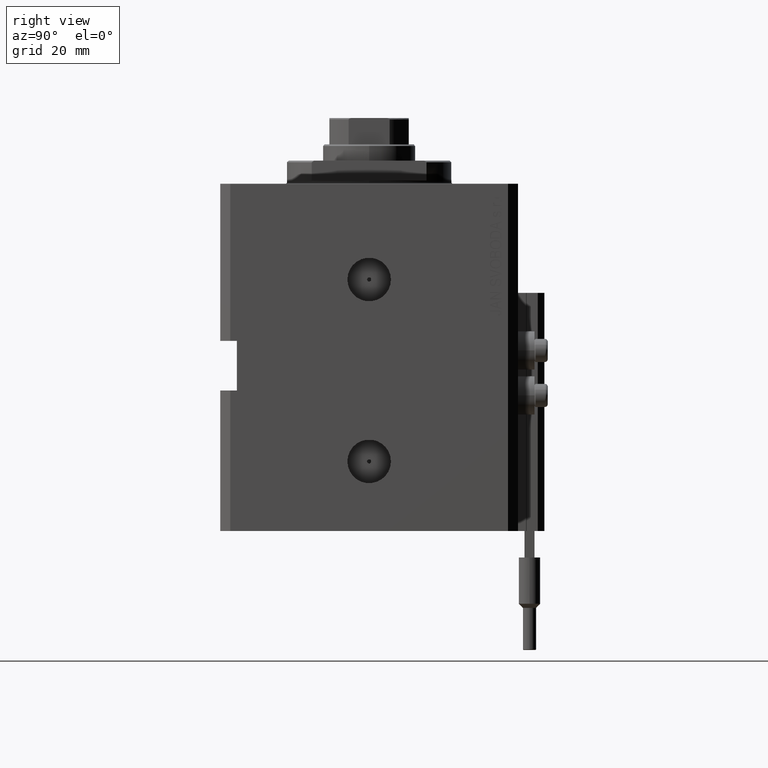
[diagram: clean part render]
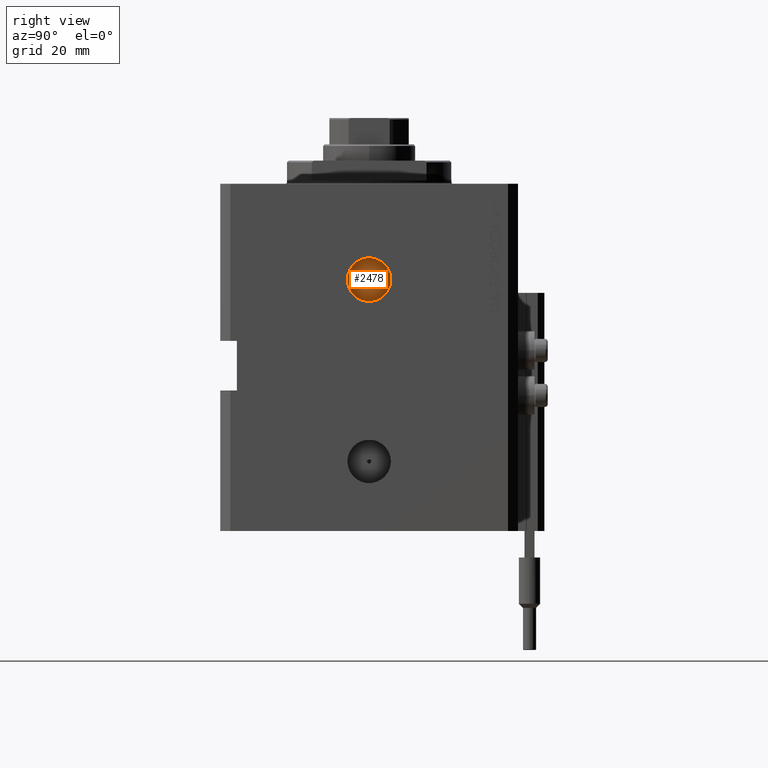
[diagram: same view with one face highlighted and labeled with its STEP entity id]
A machine part, right view. The second image highlights one B-rep face of the part: STEP entity #2478.
In plain terms, the highlighted planar face has unit normal (1, -0, 0).
Its self-contained STEP definition (entity closure, byte-faithful):
#2321 = CARTESIAN_POINT ( 'NONE',  ( 44.40000000000028990, 0.6249999999998028244, -29.00000000000000000 ) ) ;
#2478 = ADVANCED_FACE ( 'NONE', ( #28602, #20528 ), #8649, .T. ) ;
#3338 = VERTEX_POINT ( 'NONE', #2321 ) ;
#4033 = DIRECTION ( 'NONE',  ( 1.110223024625159380E-14, 1.000000000000000000, 0.000000000000000000 ) ) ;
#4275 = DIRECTION ( 'NONE',  ( 1.370906090437598597E-14, 1.000000000000000000, 0.000000000000000000 ) ) ;
#6402 = CARTESIAN_POINT ( 'NONE',  ( 44.40000000000019043, -6.580000000000194582, -29.00000000000000000 ) ) ;
#8649 = PLANE ( 'NONE',  #47807 ) ;
#11934 = CIRCLE ( 'NONE', #45101, 6.579999999999998295 ) ;
#12334 = AXIS2_PLACEMENT_3D ( 'NONE', #44032, #33362, #24781 ) ;
#13255 = ORIENTED_EDGE ( 'NONE', *, *, #26000, .T. ) ;
#14329 = ORIENTED_EDGE ( 'NONE', *, *, #14960, .F. ) ;
#14960 = EDGE_CURVE ( 'NONE', #31784, #3338, #45726, .T. ) ;
#18323 = CARTESIAN_POINT ( 'NONE',  ( 44.40000000000036806, 6.579999999999802007, -29.00000000000000000 ) ) ;
#18941 = DIRECTION ( 'NONE',  ( 1.000000000000000000, -1.334402673828349134E-14, 0.000000000000000000 ) ) ;
#20528 = FACE_OUTER_BOUND ( 'NONE', #24391, .T. ) ;
#21223 = CIRCLE ( 'NONE', #12334, 6.579999999999998295 ) ;
#23190 = CIRCLE ( 'NONE', #27191, 0.6249999999999984457 ) ;
#23242 = CARTESIAN_POINT ( 'NONE',  ( 44.40000000000028280, -1.956806206692492151E-13, -29.00000000000000000 ) ) ;
#23843 = VERTEX_POINT ( 'NONE', #18323 ) ;
#24065 = DIRECTION ( 'NONE',  ( 1.000000000000000000, -1.334402673828349134E-14, 0.000000000000000000 ) ) ;
#24391 = EDGE_LOOP ( 'NONE', ( #46771, #13255 ) ) ;
#24681 = AXIS2_PLACEMENT_3D ( 'NONE', #23242, #42989, #4033 ) ;
#24781 = DIRECTION ( 'NONE',  ( 1.370906090437598597E-14, 1.000000000000000000, 0.000000000000000000 ) ) ;
#26000 = EDGE_CURVE ( 'NONE', #35941, #23843, #21223, .T. ) ;
#27191 = AXIS2_PLACEMENT_3D ( 'NONE', #29626, #38223, #41041 ) ;
#28602 = FACE_BOUND ( 'NONE', #28605, .T. ) ;
#28605 = EDGE_LOOP ( 'NONE', ( #31190, #14329 ) ) ;
#29626 = CARTESIAN_POINT ( 'NONE',  ( 44.40000000000028280, -1.956806206692492151E-13, -29.00000000000000000 ) ) ;
#31190 = ORIENTED_EDGE ( 'NONE', *, *, #38695, .F. ) ;
#31784 = VERTEX_POINT ( 'NONE', #40177 ) ;
#33362 = DIRECTION ( 'NONE',  ( 1.000000000000000000, -1.334402673828349134E-14, 0.000000000000000000 ) ) ;
#35941 = VERTEX_POINT ( 'NONE', #6402 ) ;
#38223 = DIRECTION ( 'NONE',  ( 1.000000000000000000, -1.334402673828349134E-14, 0.000000000000000000 ) ) ;
#38695 = EDGE_CURVE ( 'NONE', #3338, #31784, #23190, .T. ) ;
#38912 = CARTESIAN_POINT ( 'NONE',  ( 44.40000000000028280, -1.956806206692491898E-13, -29.00000000000000000 ) ) ;
#40177 = CARTESIAN_POINT ( 'NONE',  ( 44.40000000000027569, -0.6250000000001941780, -29.00000000000000000 ) ) ;
#40273 = DIRECTION ( 'NONE',  ( 1.334402673828349134E-14, 1.000000000000000000, 0.000000000000000000 ) ) ;
#41041 = DIRECTION ( 'NONE',  ( 1.110223024625159380E-14, 1.000000000000000000, 0.000000000000000000 ) ) ;
#41388 = EDGE_CURVE ( 'NONE', #23843, #35941, #11934, .T. ) ;
#42989 = DIRECTION ( 'NONE',  ( 1.000000000000000000, -1.334402673828349134E-14, 0.000000000000000000 ) ) ;
#44032 = CARTESIAN_POINT ( 'NONE',  ( 44.40000000000028280, -1.956806206692491898E-13, -29.00000000000000000 ) ) ;
#45101 = AXIS2_PLACEMENT_3D ( 'NONE', #38912, #18941, #4275 ) ;
#45726 = CIRCLE ( 'NONE', #24681, 0.6249999999999984457 ) ;
#46771 = ORIENTED_EDGE ( 'NONE', *, *, #41388, .T. ) ;
#47349 = CARTESIAN_POINT ( 'NONE',  ( 44.40000000000028280, -1.956806206692491898E-13, -29.00000000000000000 ) ) ;
#47807 = AXIS2_PLACEMENT_3D ( 'NONE', #47349, #24065, #40273 ) ;